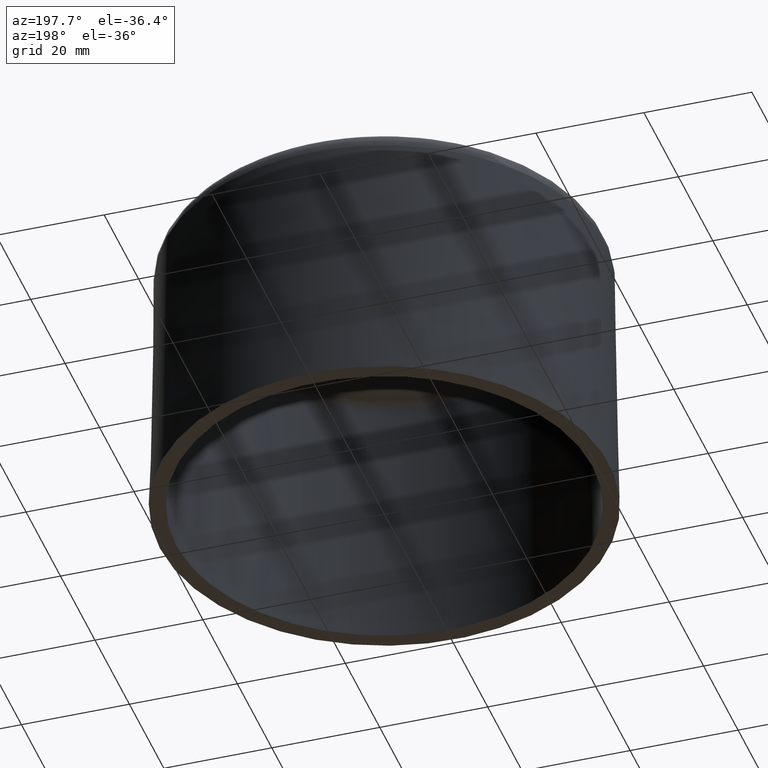
[diagram: clean part render]
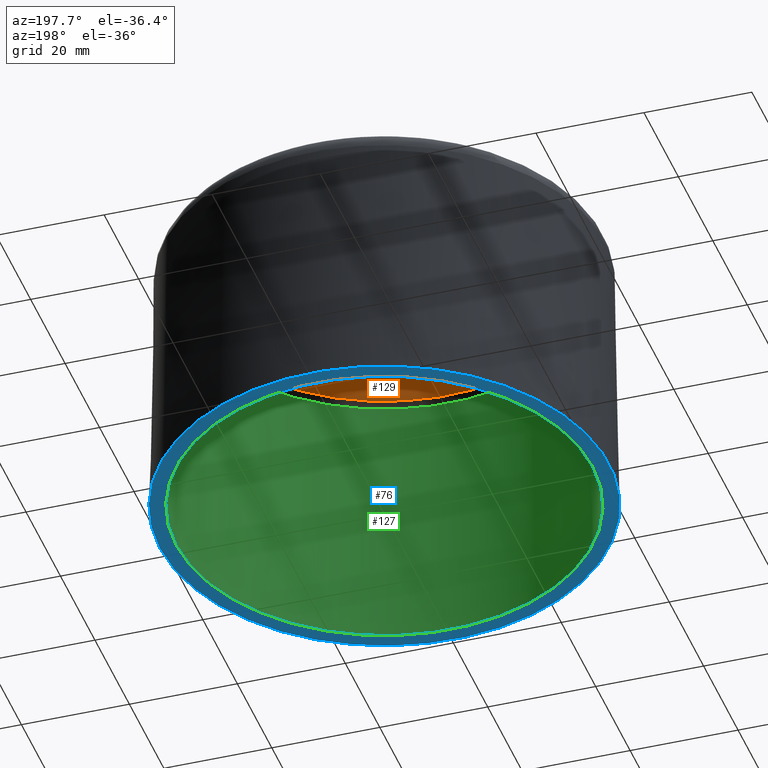
[diagram: same view with three faces highlighted in distinct colors, each labeled with its STEP entity id]
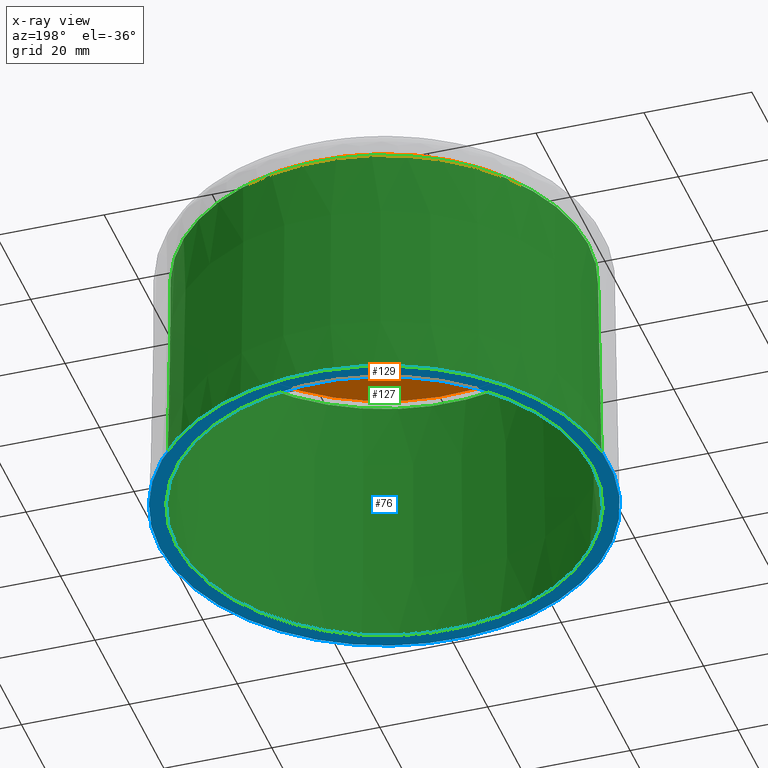
[diagram: x-ray of the same camera — body ghosted, the three highlighted faces saturated]
A machine part, auxiliary view with three faces highlighted in distinct colors.
The next image is the same camera in x-ray (body ghosted, the three faces saturated) — at least one of them is partly hidden behind the body in this view.
Their STEP definitions:

[orange] entity #129 — the highlighted planar face has unit normal (-0, 0, 1).
#129 = ADVANCED_FACE( '', ( #265 ), #266, .F. );
#265 = FACE_OUTER_BOUND( '', #423, .T. );
#266 = PLANE( '', #424 );
#423 = EDGE_LOOP( '', ( #949 ) );
#424 = AXIS2_PLACEMENT_3D( '', #950, #951, #952 );
#949 = ORIENTED_EDGE( '', *, *, #1206, .F. );
#950 = CARTESIAN_POINT( '', ( -3.06151588455594E-015, 0.000000000000000, 50.0000000000000 ) );
#951 = DIRECTION( '', ( -6.12303176911189E-017, 0.000000000000000, 1.00000000000000 ) );
#952 = DIRECTION( '', ( 1.00000000000000, 0.000000000000000, 6.12303176911189E-017 ) );
#1206 = EDGE_CURVE( '', #1465, #1465, #1466, .T. );
#1465 = VERTEX_POINT( '', #2096 );
#1466 = CIRCLE( '', #2097, 36.7309261136789 );
#2096 = CARTESIAN_POINT( '', ( 36.7309261136789, 0.000000000000000, 50.0000000000000 ) );
#2097 = AXIS2_PLACEMENT_3D( '', #2232, #2233, #2234 );
#2232 = CARTESIAN_POINT( '', ( -3.06151588455594E-015, 0.000000000000000, 50.0000000000000 ) );
#2233 = DIRECTION( '', ( -6.12303176911189E-017, 0.000000000000000, 1.00000000000000 ) );
#2234 = DIRECTION( '', ( 1.00000000000000, 0.000000000000000, 6.12303176911189E-017 ) );

[blue] entity #76 — the highlighted planar face has unit normal (-0, 0, 1).
#76 = ADVANCED_FACE( '', ( #154, #155 ), #156, .F. );
#154 = FACE_OUTER_BOUND( '', #304, .T. );
#155 = FACE_BOUND( '', #305, .T. );
#156 = PLANE( '', #306 );
#304 = EDGE_LOOP( '', ( #508 ) );
#305 = EDGE_LOOP( '', ( #509 ) );
#306 = AXIS2_PLACEMENT_3D( '', #510, #511, #512 );
#508 = ORIENTED_EDGE( '', *, *, #1109, .F. );
#509 = ORIENTED_EDGE( '', *, *, #1110, .T. );
#510 = CARTESIAN_POINT( '', ( 1.27461203448362E-030, 38.5863766232054, -2.08166817117217E-014 ) );
#511 = DIRECTION( '', ( -6.12303176911189E-017, 0.000000000000000, 1.00000000000000 ) );
#512 = DIRECTION( '', ( 1.00000000000000, 0.000000000000000, 6.12303176911189E-017 ) );
#1109 = EDGE_CURVE( '', #1313, #1313, #1314, .T. );
#1110 = EDGE_CURVE( '', #1315, #1315, #1316, .T. );
#1313 = VERTEX_POINT( '', #1712 );
#1314 = CIRCLE( '', #1713, 41.5868336073372 );
#1315 = VERTEX_POINT( '', #1714 );
#1316 = CIRCLE( '', #1715, 38.5863766232054 );
#1712 = CARTESIAN_POINT( '', ( 41.5868336073372, 0.000000000000000, -2.52092005820840E-014 ) );
#1713 = AXIS2_PLACEMENT_3D( '', #2149, #2150, #2151 );
#1714 = CARTESIAN_POINT( '', ( 38.5863766232054, 0.000000000000000, -1.15151317086264E-014 ) );
#1715 = AXIS2_PLACEMENT_3D( '', #2152, #2153, #2154 );
#2149 = CARTESIAN_POINT( '', ( 1.69948271264483E-030, 0.000000000000000, -2.77555756156289E-014 ) );
#2150 = DIRECTION( '', ( -6.12303176911189E-017, 0.000000000000000, 1.00000000000000 ) );
#2151 = DIRECTION( '', ( 1.00000000000000, 0.000000000000000, 6.12303176911189E-017 ) );
#2152 = CARTESIAN_POINT( '', ( 8.49741356322415E-031, 0.000000000000000, -1.38777878078145E-014 ) );
#2153 = DIRECTION( '', ( -6.12303176911189E-017, 0.000000000000000, 1.00000000000000 ) );
#2154 = DIRECTION( '', ( 1.00000000000000, 0.000000000000000, 6.12303176911189E-017 ) );

[green] entity #127 — the highlighted conical surface has half-angle 1 deg.
#127 = ADVANCED_FACE( '', ( #259, #260 ), #261, .F. );
#259 = FACE_OUTER_BOUND( '', #417, .T. );
#260 = FACE_BOUND( '', #418, .T. );
#261 = CONICAL_SURFACE( '', #419, 37.7307738088353, 0.0174532925199430 );
#417 = EDGE_LOOP( '', ( #939 ) );
#418 = EDGE_LOOP( '', ( #940 ) );
#419 = AXIS2_PLACEMENT_3D( '', #941, #942, #943 );
#939 = ORIENTED_EDGE( '', *, *, #1110, .F. );
#940 = ORIENTED_EDGE( '', *, *, #1205, .T. );
#941 = CARTESIAN_POINT( '', ( -3.00135418325545E-015, 0.000000000000000, 49.0174524064373 ) );
#942 = DIRECTION( '', ( 6.12303176911189E-017, 0.000000000000000, -1.00000000000000 ) );
#943 = DIRECTION( '', ( -1.00000000000000, 0.000000000000000, -6.12303176911189E-017 ) );
#1110 = EDGE_CURVE( '', #1315, #1315, #1316, .T. );
#1205 = EDGE_CURVE( '', #1463, #1463, #1464, .T. );
#1315 = VERTEX_POINT( '', #1714 );
#1316 = CIRCLE( '', #1715, 38.5863766232054 );
#1463 = VERTEX_POINT( '', #2094 );
#1464 = CIRCLE( '', #2095, 37.7307738088353 );
#1714 = CARTESIAN_POINT( '', ( 38.5863766232054, 0.000000000000000, -1.15151317086264E-014 ) );
#1715 = AXIS2_PLACEMENT_3D( '', #2152, #2153, #2154 );
#2094 = CARTESIAN_POINT( '', ( 37.7307738088353, 0.000000000000000, 49.0174524064373 ) );
#2095 = AXIS2_PLACEMENT_3D( '', #2229, #2230, #2231 );
#2152 = CARTESIAN_POINT( '', ( 8.49741356322415E-031, 0.000000000000000, -1.38777878078145E-014 ) );
#2153 = DIRECTION( '', ( -6.12303176911189E-017, 0.000000000000000, 1.00000000000000 ) );
#2154 = DIRECTION( '', ( 1.00000000000000, 0.000000000000000, 6.12303176911189E-017 ) );
#2229 = CARTESIAN_POINT( '', ( -3.00135418325545E-015, 0.000000000000000, 49.0174524064373 ) );
#2230 = DIRECTION( '', ( -6.12303176911189E-017, 0.000000000000000, 1.00000000000000 ) );
#2231 = DIRECTION( '', ( 1.00000000000000, 0.000000000000000, 6.12303176911189E-017 ) );